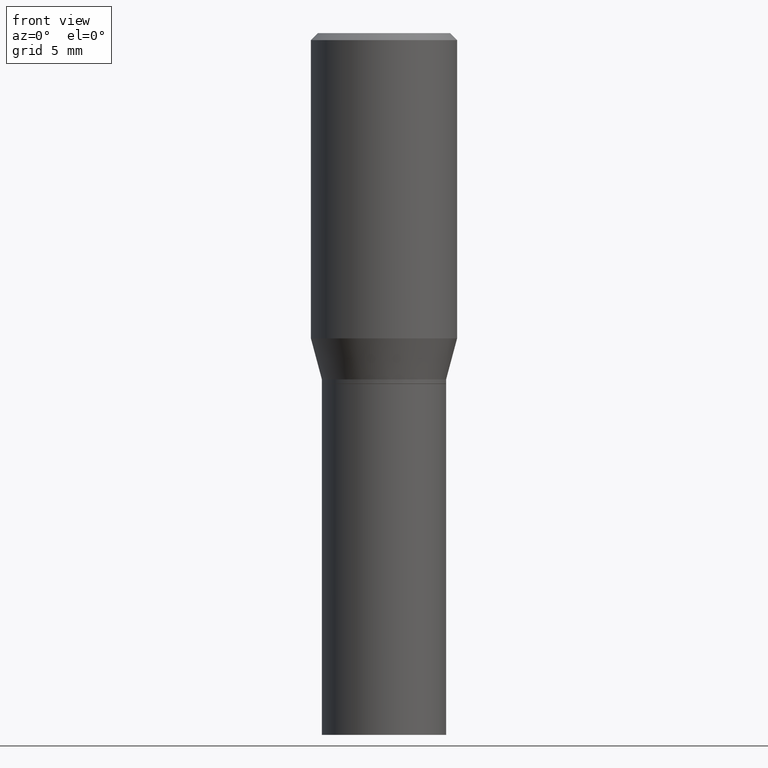
[diagram: clean part render]
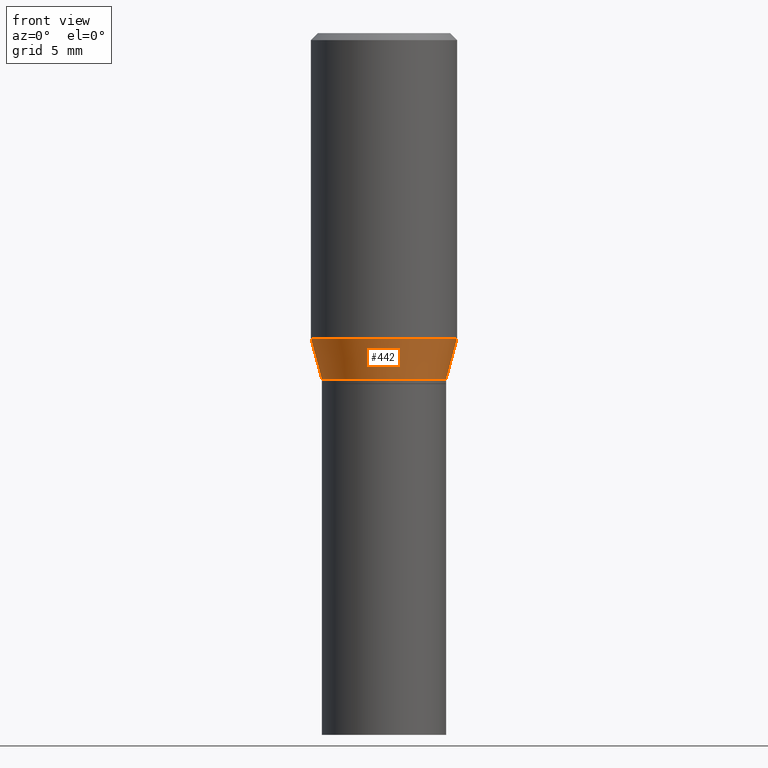
[diagram: same view with one face highlighted and labeled with its STEP entity id]
A machine part, front view. The second image highlights one B-rep face of the part: STEP entity #442.
In plain terms, the highlighted conical surface has half-angle 15 deg.
Its self-contained STEP definition (entity closure, byte-faithful):
#16 = DIRECTION ( 'NONE',  ( 1.000000000000000000, -6.982962677686265133E-15, 0.000000000000000000 ) ) ;
#30 = DIRECTION ( 'NONE',  ( -2.445468806185136597E-29, 3.491481338843145583E-15, 1.000000000000000000 ) ) ;
#48 = CIRCLE ( 'NONE', #300, 0.1562500000000000000 ) ;
#52 = CARTESIAN_POINT ( 'NONE',  ( 1.809646916577001463E-29, -2.583696190743928228E-15, -0.7400000000000002132 ) ) ;
#55 = VERTEX_POINT ( 'NONE', #421 ) ;
#63 = CARTESIAN_POINT ( 'NONE',  ( 1.809646916577001463E-29, -2.583696190743928228E-15, -0.7400000000000002132 ) ) ;
#66 = EDGE_CURVE ( 'NONE', #55, #299, #48, .T. ) ;
#101 = DIRECTION ( 'NONE',  ( -0.2588190451025214611, 5.211531920934550253E-15, 0.9659258262890679791 ) ) ;
#104 = CARTESIAN_POINT ( 'NONE',  ( 0.1328000000000000569, -3.511033634340664450E-15, -0.7400000000000002132 ) ) ;
#122 = ORIENTED_EDGE ( 'NONE', *, *, #66, .F. ) ;
#190 = DIRECTION ( 'NONE',  ( -2.445468806185136597E-29, 3.491481338843145583E-15, 1.000000000000000000 ) ) ;
#204 = ORIENTED_EDGE ( 'NONE', *, *, #290, .T. ) ;
#233 = CIRCLE ( 'NONE', #435, 0.1328000000000000569 ) ;
#248 = DIRECTION ( 'NONE',  ( -2.445468806185136597E-29, 3.491481338843145583E-15, 1.000000000000000000 ) ) ;
#261 = ORIENTED_EDGE ( 'NONE', *, *, #320, .T. ) ;
#270 = CARTESIAN_POINT ( 'NONE',  ( -0.1328000000000000569, -1.640095437654514777E-15, -0.7400000000000002132 ) ) ;
#271 = DIRECTION ( 'NONE',  ( 1.000000000000000000, -6.982962677686265133E-15, 0.000000000000000000 ) ) ;
#279 = DIRECTION ( 'NONE',  ( 1.000000000000000000, -6.982962677686265133E-15, 0.000000000000000000 ) ) ;
#282 = CARTESIAN_POINT ( 'NONE',  ( 1.595627822192971094E-29, -2.278133644900773069E-15, -0.6524834085625104141 ) ) ;
#290 = EDGE_CURVE ( 'NONE', #297, #303, #233, .T. ) ;
#297 = VERTEX_POINT ( 'NONE', #336 ) ;
#299 = VERTEX_POINT ( 'NONE', #443 ) ;
#300 = AXIS2_PLACEMENT_3D ( 'NONE', #282, #248, #271 ) ;
#303 = VERTEX_POINT ( 'NONE', #463 ) ;
#313 = LINE ( 'NONE', #104, #419 ) ;
#318 = ORIENTED_EDGE ( 'NONE', *, *, #447, .F. ) ;
#320 = EDGE_CURVE ( 'NONE', #303, #299, #313, .T. ) ;
#336 = CARTESIAN_POINT ( 'NONE',  ( -0.1328000000000000569, -1.404003028965065357E-15, -0.7400000000000002132 ) ) ;
#353 = AXIS2_PLACEMENT_3D ( 'NONE', #63, #30, #279 ) ;
#415 = CONICAL_SURFACE ( 'NONE', #353, 0.1328000000000000569, 0.2617993877991501850 ) ;
#419 = VECTOR ( 'NONE', #466, 39.37007874015748143 ) ;
#421 = CARTESIAN_POINT ( 'NONE',  ( -0.1562500000000000000, -1.167910620275616332E-15, -0.6524834085625104141 ) ) ;
#425 = LINE ( 'NONE', #270, #449 ) ;
#431 = FACE_OUTER_BOUND ( 'NONE', #455, .T. ) ;
#435 = AXIS2_PLACEMENT_3D ( 'NONE', #52, #190, #16 ) ;
#442 = ADVANCED_FACE ( 'NONE', ( #431 ), #415, .T. ) ;
#443 = CARTESIAN_POINT ( 'NONE',  ( 0.1562500000000000000, -3.369221563289251454E-15, -0.6524834085625104141 ) ) ;
#447 = EDGE_CURVE ( 'NONE', #297, #55, #425, .T. ) ;
#449 = VECTOR ( 'NONE', #101, 39.37007874015748143 ) ;
#455 = EDGE_LOOP ( 'NONE', ( #318, #204, #261, #122 ) ) ;
#463 = CARTESIAN_POINT ( 'NONE',  ( 0.1328000000000000569, -3.511033634340664450E-15, -0.7400000000000002132 ) ) ;
#466 = DIRECTION ( 'NONE',  ( 0.2588190451025214611, 1.565188264969620982E-15, 0.9659258262890679791 ) ) ;